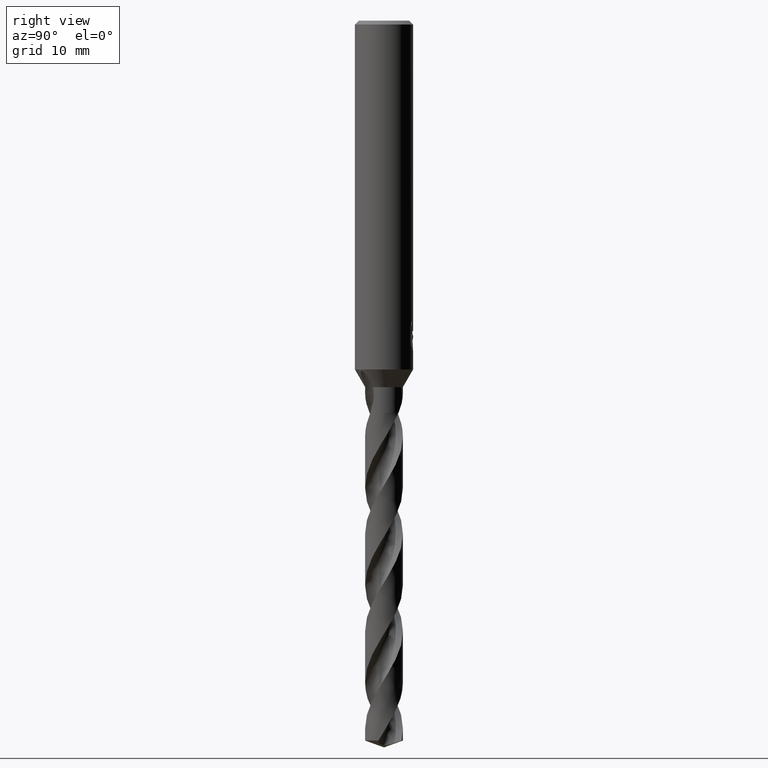
[diagram: clean part render]
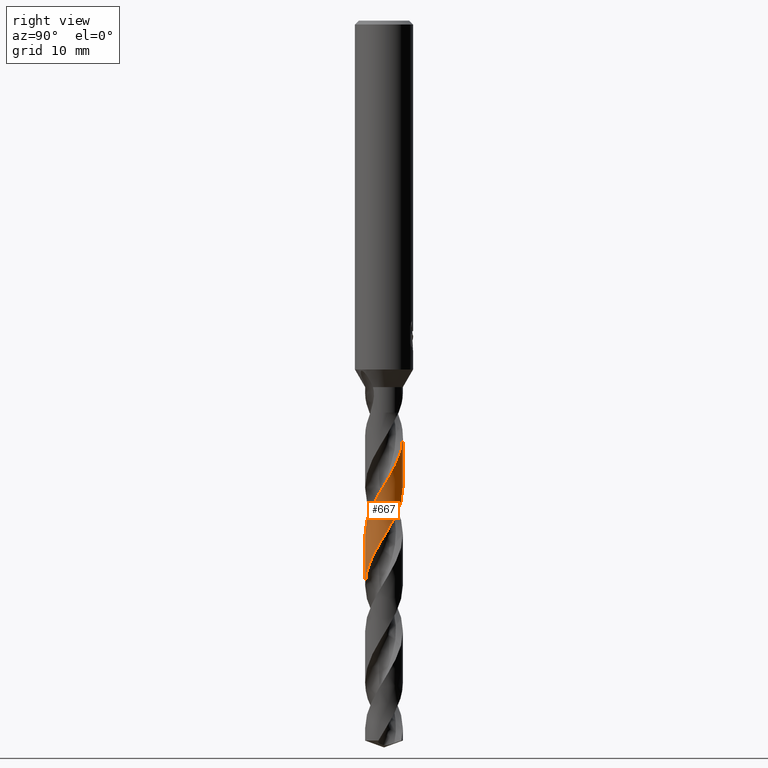
[diagram: same view with one face highlighted and labeled with its STEP entity id]
A machine part, right view. The second image highlights one B-rep face of the part: STEP entity #667.
In plain terms, the highlighted conical surface has half-angle 0 deg.
Its self-contained STEP definition (entity closure, byte-faithful):
#309=VERTEX_POINT('',#865);
#379=EDGE_CURVE('',#649,#807,#939,.T.);
#401=EDGE_CURVE('',#309,#785,#965,.T.);
#463=EDGE_CURVE('',#649,#785,#1034,.T.);
#591=EDGE_CURVE('',#309,#807,#1168,.T.);
#649=VERTEX_POINT('',#1233);
#667=ADVANCED_FACE('',(#1252),#1253,.T.);
#785=VERTEX_POINT('',#1382);
#807=VERTEX_POINT('',#1410);
#865=CARTESIAN_POINT('',(-8.96673606225903E-016,1.94990729205384,-42.9161665087043));
#939=LINE('',#2180,#2181);
#965=LINE('',#2504,#2505);
#1034=B_SPLINE_CURVE_WITH_KNOTS('',3,(#2822,#2823,#2824,#2825,#2826,#2827,#2828,#2829,#2830,#2831,#2832,#2833,#2834,#2835,#2836,#2837,#2838,#2839,#2840,#2841,#2842,#2843,#2844,#2845,#2846,#2847,#2848,#2849,#2850,#2851,#2852,#2853,#2854,#2855,#2856,#2857,#2858,#2859,#2860,#2861,#2862,#2863,#2864,#2865,#2866,#2867,#2868,#2869,#2870,#2871,#2872,#2873,#2874,#2875,#2876,#2877,#2878,#2879,#2880,#2881,#2882,#2883,#2884,#2885,#2886,#2887,#2888,#2889,#2890,#2891,#2892,#2893,#2894,#2895,#2896,#2897,#2898,#2899,#2900,#2901,#2902,#2903,#2904,#2905,#2906,#2907,#2908,#2909,#2910,#2911,#2912,#2913,#2914,#2915,#2916,#2917,#2918,#2919,#2920,#2921,#2922,#2923,#2924,#2925,#2926,#2927,#2928,#2929,#2930,#2931,#2932,#2933,#2934,#2935,#2936,#2937,#2938,#2939,#2940,#2941,#2942,#2943,#2944,#2945,#2946,#2947,#2948,#2949,#2950,#2951,#2952,#2953,#2954,#2955,#2956,#2957),.UNSPECIFIED.,.F.,.F.,(4,2,2,2,2,2,2,2,2,2,2,2,2,2,2,2,2,2,2,2,2,2,2,2,2,2,2,2,2,2,2,2,2,2,2,2,2,2,2,2,2,2,2,2,2,2,2,2,2,2,2,2,2,2,2,2,2,2,2,2,2,2,2,2,2,2,2,4),(0.0,1.02241747386653,1.65349218471775,1.77400106783432,2.72781449901232,3.35600214616949,4.04768943365469,4.33286432461689,5.28861979553649,5.88973198028568,6.51809903493381,7.1366255676585,7.82860282321543,8.12420569406693,9.06506332849365,9.69527810499796,10.3245964762636,10.9436293474671,11.5723814201442,12.1926719976909,12.8209263047681,13.4425315637971,14.0703676251653,14.693305694887,15.3208795328719,15.9449450914205,16.6364010963232,17.3636105918588,18.058859502588,18.3113421173442,19.3507899114497,19.5947610915049,20.666692126821,20.7240455422435,21.9288733543756,22.044841665082,22.9387356197562,23.561783691544,24.1885334254402,24.3453144016727,24.6224236879421,25.6004276696469,25.8844768903639,26.8451400873303,27.4404345695375,28.0702852168529,28.7217899405893,29.4162472923063,29.6970872672615,30.6693585614467,30.9602879956978,31.9114199508738,32.5295195722138,33.1611278156659,33.7826972843071,34.4135936084014,35.0358975933457,37.1978353523031,37.2884805218092,38.1192666378676,38.6881544815478,39.1310088199195,39.1989737657501,39.2292537744378,39.2618050734588,39.3132813213227,39.458934050572,39.6709048047517),.UNSPECIFIED.);
#1168=B_SPLINE_CURVE_WITH_KNOTS('',3,(#4886,#4887,#4888,#4889,#4890,#4891,#4892,#4893,#4894,#4895,#4896,#4897,#4898,#4899,#4900,#4901,#4902,#4903,#4904,#4905,#4906,#4907,#4908,#4909,#4910,#4911,#4912,#4913,#4914,#4915,#4916,#4917,#4918,#4919,#4920,#4921,#4922,#4923,#4924,#4925,#4926,#4927,#4928,#4929,#4930,#4931,#4932,#4933,#4934,#4935,#4936,#4937,#4938,#4939,#4940,#4941,#4942,#4943,#4944,#4945,#4946,#4947,#4948,#4949,#4950,#4951,#4952,#4953,#4954,#4955,#4956,#4957,#4958,#4959,#4960,#4961,#4962,#4963,#4964,#4965,#4966,#4967,#4968,#4969,#4970,#4971,#4972,#4973,#4974,#4975,#4976,#4977,#4978,#4979,#4980,#4981,#4982,#4983,#4984,#4985,#4986,#4987,#4988,#4989,#4990,#4991,#4992,#4993,#4994,#4995,#4996,#4997,#4998,#4999,#5000,#5001,#5002,#5003,#5004,#5005,#5006,#5007,#5008,#5009,#5010,#5011,#5012,#5013,#5014,#5015,#5016,#5017,#5018,#5019,#5020,#5021,#5022,#5023,#5024,#5025,#5026,#5027,#5028,#5029,#5030,#5031,#5032,#5033,#5034,#5035,#5036,#5037,#5038,#5039,#5040,#5041,#5042,#5043),.UNSPECIFIED.,.F.,.F.,(4,2,2,2,2,2,2,2,2,2,2,2,2,2,2,2,2,2,2,2,2,2,2,2,2,2,2,2,2,2,2,2,2,2,2,2,2,2,2,2,2,2,2,2,2,2,2,2,2,2,2,2,2,2,2,2,2,2,2,2,2,2,2,2,2,2,2,2,2,2,2,2,2,2,2,2,2,2,4),(0.0,0.0979046854745173,0.149922485772823,0.160049441913393,0.163963055930492,0.165513142384382,0.417084610099535,0.474068482294199,0.504859207719374,0.530490673428817,0.560615878551758,0.614556843563442,0.690720321107588,1.01953864462796,1.23973710163654,1.61599641301921,2.1549228450989,2.71773892062005,3.2655194299019,3.57460628607665,3.96752329555405,4.91173969850886,5.06048315102394,5.6483011802585,5.99085533562544,6.37698396986695,7.08939771782072,7.64726266220587,8.41815955196436,8.84609060037964,9.48146202921303,10.1589964000968,11.0075335955052,11.3460009505375,12.0960610337305,12.5605788842349,13.2721355730666,13.8252447401586,14.583544275853,15.296877716435,15.9687935534099,16.297135977571,17.0598285243917,17.7724129897426,18.4444304428384,18.7707442334175,19.5333127119461,20.2458732840776,20.9180988465482,21.242840853519,22.0086107363191,22.7206907475721,23.3929365186919,23.7166272646415,24.4859591402416,24.916357444686,25.5593030209328,26.2349197737352,27.1034878786819,27.4244887303365,28.1936750762678,28.6235166448096,29.266915790958,29.9423028870446,30.8171978015787,31.133434599144,31.9075466764163,32.3290300518285,32.9703335200064,33.6458916108368,34.5185662128089,34.8373363122632,35.6093557955102,35.9959957207336,36.5815875523473,36.8515707128142,37.3216962822104,38.0292419757406,38.7420424449292),.UNSPECIFIED.);
#1233=CARTESIAN_POINT('',(-1.57532397324927E-013,-1.94995261129944,-58.2530412703947));
#1252=FACE_OUTER_BOUND('',#5416,.T.);
#1253=CONICAL_SURFACE('',#5417,1.94995,2.95492049733504E-006);
#1382=CARTESIAN_POINT('',(-8.00210192157903E-015,1.94992293384965,-48.2096408427478));
#1410=CARTESIAN_POINT('',(-1.46763234943699E-013,-1.94993697140284,-52.9602096663236));
#2180=CARTESIAN_POINT('',(2.38544023908379E-016,-1.94995,-57.3693290215905));
#2181=VECTOR('',#7681,1.0);
#2504=CARTESIAN_POINT('',(-2.3904020801881E-016,1.94995,-57.3693290215905));
#2505=VECTOR('',#7736,1.0);
#2822=CARTESIAN_POINT('',(1.86090575201508,-0.582691841471285,-74.2902580431809));
#2823=CARTESIAN_POINT('',(1.91406108762914,-0.41293016339118,-73.9995621659353));
#2824=CARTESIAN_POINT('',(1.94367171419087,-0.236975360791225,-73.7069413993602));
#2825=CARTESIAN_POINT('',(1.95243305069733,0.050030484570142,-73.2367940984765));
#2826=CARTESIAN_POINT('',(1.94653134451806,0.159489628398433,-73.058273417861));
#2827=CARTESIAN_POINT('',(1.92866842576563,0.288368974828559,-72.844337237033));
#2828=CARTESIAN_POINT('',(1.92547454581619,0.308978420896566,-72.810012665942));
#2829=CARTESIAN_POINT('',(1.89397732990449,0.492648101163067,-72.5037669308456));
#2830=CARTESIAN_POINT('',(1.84536988373523,0.65155161874849,-72.2350429260964));
#2831=CARTESIAN_POINT('',(1.73231202421575,0.901923315543878,-71.7845184952027));
#2832=CARTESIAN_POINT('',(1.67914916519177,0.99742581339889,-71.6048897227962));
#2833=CARTESIAN_POINT('',(1.55108987165085,1.18787627685165,-71.2289725023152));
#2834=CARTESIAN_POINT('',(1.47493540580123,1.28119079682503,-71.0331773034717));
#2835=CARTESIAN_POINT('',(1.35605188946632,1.40215333845509,-70.754839393087));
#2836=CARTESIAN_POINT('',(1.3200685704202,1.43607701351741,-70.6734024301699));
#2837=CARTESIAN_POINT('',(1.15819070198091,1.57748356162127,-70.3201166341193));
#2838=CARTESIAN_POINT('',(1.02011931474667,1.67011018398793,-70.0512636061108));
#2839=CARTESIAN_POINT('',(0.778671022318458,1.79080423462852,-69.6084512501582));
#2840=CARTESIAN_POINT('',(0.681794393257356,1.82989133827738,-69.4367972103225));
#2841=CARTESIAN_POINT('',(0.4779749408765,1.89364538287466,-69.0870240410554));
#2842=CARTESIAN_POINT('',(0.371295085639721,1.91741224744566,-68.9091618304424));
#2843=CARTESIAN_POINT('',(0.15688470583536,1.94662356976915,-68.5543603145438));
#2844=CARTESIAN_POINT('',(0.0495162713879827,1.9523127029553,-68.3776580947059));
#2845=CARTESIAN_POINT('',(-0.178037134166117,1.9455538989306,-68.0047297072661));
#2846=CARTESIAN_POINT('',(-0.297534776292968,1.93088359649519,-67.8090150272948));
#2847=CARTESIAN_POINT('',(-0.464952546659077,1.89443168581574,-67.5278905779353));
#2848=CARTESIAN_POINT('',(-0.514538215635555,1.88156486290993,-67.4435466375352));
#2849=CARTESIAN_POINT('',(-0.719303370281363,1.81975521140535,-67.0919343389298));
#2850=CARTESIAN_POINT('',(-0.868688205584181,1.7533839942037,-66.8274792197827));
#2851=CARTESIAN_POINT('',(-1.10163063811025,1.6126796997532,-66.3811916208806));
#2852=CARTESIAN_POINT('',(-1.19020204428989,1.54847550640309,-66.2014593502141));
#2853=CARTESIAN_POINT('',(-1.35570117562844,1.40584263939777,-65.8436313187766));
#2854=CARTESIAN_POINT('',(-1.43222594989177,1.32778892154591,-65.6657448962906));
#2855=CARTESIAN_POINT('',(-1.57021595154837,1.16117473229992,-65.311010505393));
#2856=CARTESIAN_POINT('',(-1.63171686299616,1.07304635129333,-65.1344050296828));
#2857=CARTESIAN_POINT('',(-1.7405344366321,0.8859058661495,-64.7798015879201));
#2858=CARTESIAN_POINT('',(-1.78734130890092,0.787198954503787,-64.6020218308797));
#2859=CARTESIAN_POINT('',(-1.8634270536045,0.584456155276235,-64.2470162132804));
#2860=CARTESIAN_POINT('',(-1.89281324829213,0.480853902853395,-64.070012532036));
#2861=CARTESIAN_POINT('',(-1.93449580447871,0.268297635608216,-63.7151340828531));
#2862=CARTESIAN_POINT('',(-1.94646118000617,0.159797250687097,-63.5374863446842));
#2863=CARTESIAN_POINT('',(-1.95211610709335,-0.0568768239973123,-63.1822303464684));
#2864=CARTESIAN_POINT('',(-1.94599530640431,-0.16461599156645,-63.0048458424231));
#2865=CARTESIAN_POINT('',(-1.91583023931686,-0.379237132677661,-62.6497031028782));
#2866=CARTESIAN_POINT('',(-1.89166658630868,-0.485612057433855,-62.4721717776566));
#2867=CARTESIAN_POINT('',(-1.82609253559661,-0.692401044927731,-62.1166856990693));
#2868=CARTESIAN_POINT('',(-1.78496827116279,-0.792412056733024,-61.9389410168164));
#2869=CARTESIAN_POINT('',(-1.68614304432903,-0.985454456782292,-61.5835272327649));
#2870=CARTESIAN_POINT('',(-1.62852405964979,-1.07801144191995,-61.4060886520134));
#2871=CARTESIAN_POINT('',(-1.4987937565575,-1.25207043145213,-61.0504210033296));
#2872=CARTESIAN_POINT('',(-1.42706841069519,-1.33323895897894,-60.8723786653867));
#2873=CARTESIAN_POINT('',(-1.26238200355444,-1.49100710521558,-60.4985558500794));
#2874=CARTESIAN_POINT('',(-1.16837464226184,-1.56575931383516,-60.3033021206845));
#2875=CARTESIAN_POINT('',(-0.962656947967398,-1.70044471005482,-59.9002096991366));
#2876=CARTESIAN_POINT('',(-0.850721264943936,-1.75912910326317,-59.6928125538908));
#2877=CARTESIAN_POINT('',(-0.621986076733731,-1.85203160399732,-59.2886581924082));
#2878=CARTESIAN_POINT('',(-0.506368431433912,-1.88690062609934,-59.0923055136991));
#2879=CARTESIAN_POINT('',(-0.34563433997486,-1.91957496389463,-58.8227723132703));
#2880=CARTESIAN_POINT('',(-0.302572138861209,-1.92683263290968,-58.7508375773869));
#2881=CARTESIAN_POINT('',(-0.0807574318241567,-1.95658318352403,-58.3832159697117));
#2882=CARTESIAN_POINT('',(0.100038407738237,-1.9556745735475,-58.0915790076473));
#2883=CARTESIAN_POINT('',(0.319870200509417,-1.92399967184623,-57.7264556737591));
#2884=CARTESIAN_POINT('',(0.36144163941802,-1.9166269525134,-57.6569264336786));
#2885=CARTESIAN_POINT('',(0.584754895497667,-1.86947386278742,-57.2820979804791));
#2886=CARTESIAN_POINT('',(0.760034276240594,-1.80529374729364,-56.9812996345887));
#2887=CARTESIAN_POINT('',(0.932220719939739,-1.712705444005,-56.6595873030117));
#2888=CARTESIAN_POINT('',(0.940916342912195,-1.70794365144885,-56.6432584804242));
#2889=CARTESIAN_POINT('',(1.13162897151576,-1.60160923078821,-56.283876245246));
#2890=CARTESIAN_POINT('',(1.29613174458406,-1.47164373288951,-55.9472264051396));
#2891=CARTESIAN_POINT('',(1.45051673835466,-1.30333710140867,-55.5714622750067));
#2892=CARTESIAN_POINT('',(1.46383414633796,-1.28836215036392,-55.5384531292724));
#2893=CARTESIAN_POINT('',(1.5780475388921,-1.15586436013641,-55.2507630041261));
#2894=CARTESIAN_POINT('',(1.66491590337147,-1.02684953902672,-54.9987867022926));
#2895=CARTESIAN_POINT('',(1.78495099299373,-0.792416948291486,-54.5672465318181));
#2896=CARTESIAN_POINT('',(1.82611631488573,-0.692289087758115,-54.3892981899526));
#2897=CARTESIAN_POINT('',(1.89166182896724,-0.485505688702863,-54.0337533738591));
#2898=CARTESIAN_POINT('',(1.9157994737484,-0.379231652901484,-53.8563827380432));
#2899=CARTESIAN_POINT('',(1.93473756017816,-0.244526876233706,-53.6335376817292));
#2900=CARTESIAN_POINT('',(1.9379593252434,-0.217517146534277,-53.5889502568795));
#2901=CARTESIAN_POINT('',(1.9453058088357,-0.142663202385944,-53.4654769916247));
#2902=CARTESIAN_POINT('',(1.94822404758378,-0.0947735323611833,-53.386451399955));
#2903=CARTESIAN_POINT('',(1.95343962954181,0.122375093142085,-53.0294868165211));
#2904=CARTESIAN_POINT('',(1.93546240455679,0.29139763082513,-52.7548022000921));
#2905=CARTESIAN_POINT('',(1.88435506219342,0.503857702346517,-52.3961396410003));
#2906=CARTESIAN_POINT('',(1.87106643828683,0.551149127641803,-52.3152365015437));
#2907=CARTESIAN_POINT('',(1.80513256655351,0.755833720653243,-51.9617781982763));
#2908=CARTESIAN_POINT('',(1.73427695817532,0.906708121768053,-51.6922587813878));
#2909=CARTESIAN_POINT('',(1.58982397724008,1.13370678395271,-51.2508247151139));
#2910=CARTESIAN_POINT('',(1.52772490712275,1.21611105177761,-51.0812574898618));
#2911=CARTESIAN_POINT('',(1.38694344597537,1.37496331623787,-50.7335879407266));
#2912=CARTESIAN_POINT('',(1.30786539687831,1.45038020076473,-50.5557516078724));
#2913=CARTESIAN_POINT('',(1.13509810502105,1.58949495020158,-50.1920639398954));
#2914=CARTESIAN_POINT('',(1.04127342417393,1.65248888965536,-50.0064179442529));
#2915=CARTESIAN_POINT('',(0.837053847214854,1.76523167936402,-49.6243740326437));
#2916=CARTESIAN_POINT('',(0.726612048016931,1.81347289737858,-49.42845166509));
#2917=CARTESIAN_POINT('',(0.566417670073962,1.86647853585259,-49.1514747968671));
#2918=CARTESIAN_POINT('',(0.519807009929429,1.87998983883036,-49.0715451126106));
#2919=CARTESIAN_POINT('',(0.309878635090971,1.9324511298835,-48.7159119011851));
#2920=CARTESIAN_POINT('',(0.142402758815889,1.95196014638795,-48.4433693449113));
#2921=CARTESIAN_POINT('',(-0.0758516667354654,1.94909509549104,-48.0851710701126));
#2922=CARTESIAN_POINT('',(-0.125996105649158,1.94649327992222,-48.0024847697664));
#2923=CARTESIAN_POINT('',(-0.339186160601397,1.92717837523111,-47.6506023938388));
#2924=CARTESIAN_POINT('',(-0.499988527549851,1.89186056789514,-47.3843061255267));
#2925=CARTESIAN_POINT('',(-0.755047725004354,1.80096162575558,-46.940187679981));
#2926=CARTESIAN_POINT('',(-0.852454845001937,1.75696148021142,-46.7645629565204));
#2927=CARTESIAN_POINT('',(-1.04131438562554,1.65219773862078,-46.410819606047));
#2928=CARTESIAN_POINT('',(-1.13211124037111,1.59134954386881,-46.2329334481916));
#2929=CARTESIAN_POINT('',(-1.30114034422454,1.4562705487248,-45.8781293199195));
#2930=CARTESIAN_POINT('',(-1.3793127725729,1.38246551198899,-45.7014405193444));
#2931=CARTESIAN_POINT('',(-1.52392938389565,1.22135122188353,-45.3468116920433));
#2932=CARTESIAN_POINT('',(-1.58981864172043,1.13424800664895,-45.1690917567035));
#2933=CARTESIAN_POINT('',(-1.70551754901553,0.951276160637452,-44.8142146321661));
#2934=CARTESIAN_POINT('',(-1.7553323448742,0.855879160436415,-44.6372950420347));
#2935=CARTESIAN_POINT('',(-1.94204730867472,0.412495345166309,-43.8488265453793));
#2936=CARTESIAN_POINT('',(-1.98447075602287,0.0350305329159868,-43.2549966634432));
#2937=CARTESIAN_POINT('',(-1.91914320149364,-0.345348498099612,-42.6177232454159));
#2938=CARTESIAN_POINT('',(-1.91633817558407,-0.360589842422796,-42.5920954577132));
#2939=CARTESIAN_POINT('',(-1.88583496680962,-0.515862290927536,-42.3308956390798));
#2940=CARTESIAN_POINT('',(-1.84316384746794,-0.652243875284971,-42.1007242957743));
#2941=CARTESIAN_POINT('',(-1.74612789126588,-0.873381824345456,-41.7082637383499));
#2942=CARTESIAN_POINT('',(-1.70041915490712,-0.959046058710796,-41.550530434621));
#2943=CARTESIAN_POINT('',(-1.61010402409136,-1.10235293760498,-41.2656174042314));
#2944=CARTESIAN_POINT('',(-1.56808734307741,-1.16112193238895,-41.1409267848906));
#2945=CARTESIAN_POINT('',(-1.51729132617782,-1.22476966182759,-40.994477607623));
#2946=CARTESIAN_POINT('',(-1.51078209895782,-1.2328322992653,-40.9756022686115));
#2947=CARTESIAN_POINT('',(-1.49703970762999,-1.24941259180009,-40.9384275953647));
#2948=CARTESIAN_POINT('',(-1.49272597576314,-1.25456405322376,-40.9270201586638));
#2949=CARTESIAN_POINT('',(-1.48360631149848,-1.26533831286461,-40.9034479168605));
#2950=CARTESIAN_POINT('',(-1.47878957202414,-1.27096530612131,-40.8912952470403));
#2951=CARTESIAN_POINT('',(-1.46610893034937,-1.28560496948515,-40.8600699607116));
#2952=CARTESIAN_POINT('',(-1.45810750312872,-1.29467724336279,-40.8410965104418));
#2953=CARTESIAN_POINT('',(-1.42652452107594,-1.32979674726626,-40.7689875476987));
#2954=CARTESIAN_POINT('',(-1.40133317200723,-1.35641341867864,-40.7171126205301));
#2955=CARTESIAN_POINT('',(-1.334336789607,-1.42295089944018,-40.5924874214124));
#2956=CARTESIAN_POINT('',(-1.29065836559316,-1.46294567479517,-40.5218629318592));
#2957=CARTESIAN_POINT('',(-1.24254090396988,-1.50273156936949,-40.4534));
#4886=CARTESIAN_POINT('',(-1.35533010780669,1.40185247672167,-40.4534));
#4887=CARTESIAN_POINT('',(-1.34371833144948,1.41307901714275,-40.4817578529157));
#4888=CARTESIAN_POINT('',(-1.33192350624318,1.42420391939092,-40.5101608161048));
#4889=CARTESIAN_POINT('',(-1.31352979776893,1.44111965824155,-40.5536125633229));
#4890=CARTESIAN_POINT('',(-1.30709476101877,1.44695918525476,-40.5686629060358));
#4891=CARTESIAN_POINT('',(-1.29932473861897,1.45391530522589,-40.5866376888863));
#4892=CARTESIAN_POINT('',(-1.29805622528456,1.45504796114313,-40.5895660021808));
#4893=CARTESIAN_POINT('',(-1.29629407820105,1.45661723830267,-40.5936251377993));
#4894=CARTESIAN_POINT('',(-1.29580254735802,1.45705452467898,-40.5947564508292));
#4895=CARTESIAN_POINT('',(-1.29511582446091,1.45766483936523,-40.5963357064767));
#4896=CARTESIAN_POINT('',(-1.29492094031744,1.45783796980724,-40.5967837337538));
#4897=CARTESIAN_POINT('',(-1.26308800487154,1.48610617106633,-40.6699416654031));
#4898=CARTESIAN_POINT('',(-1.23083453989387,1.51297054212101,-40.7401017510618));
#4899=CARTESIAN_POINT('',(-1.18839165508189,1.54594248718296,-40.8277218155326));
#4900=CARTESIAN_POINT('',(-1.18048655285233,1.55198772692722,-40.8438610422609));
#4901=CARTESIAN_POINT('',(-1.16818899467656,1.56124260641826,-40.8687183037135));
#4902=CARTESIAN_POINT('',(-1.16385599582986,1.56447547025723,-40.87742984846));
#4903=CARTESIAN_POINT('',(-1.15587834377639,1.570375977675,-40.8933895514964));
#4904=CARTESIAN_POINT('',(-1.15224163052205,1.57304635908067,-40.9006350806591));
#4905=CARTESIAN_POINT('',(-1.1443017078387,1.5788341226044,-40.9163937481538));
#4906=CARTESIAN_POINT('',(-1.13999548582704,1.581946294543,-40.9249023319972));
#4907=CARTESIAN_POINT('',(-1.12793123538981,1.59059032722448,-40.9486442277438));
#4908=CARTESIAN_POINT('',(-1.12014421727828,1.59608390966337,-40.9638591479842));
#4909=CARTESIAN_POINT('',(-1.10125002859876,1.60920666832173,-41.0005712717915));
#4910=CARTESIAN_POINT('',(-1.0901944089479,1.61671929299084,-41.0219290577856));
#4911=CARTESIAN_POINT('',(-1.02938042073957,1.65710813887938,-41.1391211984429));
#4912=CARTESIAN_POINT('',(-0.978852165036145,1.6874199491104,-41.23500487603));
#4913=CARTESIAN_POINT('',(-0.89297849267239,1.7338521836679,-41.3948199082099));
#4914=CARTESIAN_POINT('',(-0.858028246526699,1.75140918695738,-41.4590410551531));
#4915=CARTESIAN_POINT('',(-0.762124893318673,1.79603502167123,-41.6328714893108));
#4916=CARTESIAN_POINT('',(-0.700217023230326,1.82106468402434,-41.7426124414023));
#4917=CARTESIAN_POINT('',(-0.546771536694587,1.87411570993389,-42.0092834091239));
#4918=CARTESIAN_POINT('',(-0.45417668467576,1.89869263406342,-42.1655665960144));
#4919=CARTESIAN_POINT('',(-0.261668419815586,1.93485799247196,-42.4861519954));
#4920=CARTESIAN_POINT('',(-0.162175454077834,1.94571293577654,-42.6497531067724));
#4921=CARTESIAN_POINT('',(0.0346998614109001,1.95201794892694,-42.9732053732291));
#4922=CARTESIAN_POINT('',(0.131950706545857,1.94786743007312,-43.1326295763127));
#4923=CARTESIAN_POINT('',(0.283026086640646,1.93003916227235,-43.3821090835511));
#4924=CARTESIAN_POINT('',(0.337248234450109,1.92130805839372,-43.4720332882994));
#4925=CARTESIAN_POINT('',(0.459448864397172,1.8962932465192,-43.6763584918853));
#4926=CARTESIAN_POINT('',(0.527019691782879,1.87863439008055,-43.7905672622694));
#4927=CARTESIAN_POINT('',(0.753201782739965,1.80636497677775,-44.179886960956));
#4928=CARTESIAN_POINT('',(0.905703620064046,1.73493194366652,-44.4537067306342));
#4929=CARTESIAN_POINT('',(1.06947770215584,1.63066716268441,-44.7719014972566));
#4930=CARTESIAN_POINT('',(1.09146910479355,1.61603002657175,-44.8151962621765));
#4931=CARTESIAN_POINT('',(1.19884701167186,1.54137022199064,-45.0296839887259));
#4932=CARTESIAN_POINT('',(1.27962810121245,1.47499608987271,-45.2007704021075));
#4933=CARTESIAN_POINT('',(1.39846288654569,1.36020955615407,-45.4717032469138));
#4934=CARTESIAN_POINT('',(1.44022687161584,1.31591044098749,-45.5713795925468));
#4935=CARTESIAN_POINT('',(1.52453677167885,1.21764783861246,-45.7835335399517));
#4936=CARTESIAN_POINT('',(1.56641685019652,1.16327661403544,-45.8958035487706));
#4937=CARTESIAN_POINT('',(1.67714731358821,1.00267516442649,-46.2157440829266));
#4938=CARTESIAN_POINT('',(1.73867269784902,0.891749775543707,-46.422912481291));
#4939=CARTESIAN_POINT('',(1.82844770403544,0.684679733410137,-46.7928210588555));
#4940=CARTESIAN_POINT('',(1.86087026480006,0.590897795927925,-46.9548737393278));
#4941=CARTESIAN_POINT('',(1.92077968177172,0.362676315699407,-47.3419182518799));
#4942=CARTESIAN_POINT('',(1.94151131067166,0.226922925848298,-47.5659764713196));
#4943=CARTESIAN_POINT('',(1.95135347962626,0.0141053965711385,-47.9150916824304));
#4944=CARTESIAN_POINT('',(1.95041872381534,-0.0619746232958442,-48.0395099121715));
#4945=CARTESIAN_POINT('',(1.93707480821189,-0.250352976163353,-48.3492526554922));
#4946=CARTESIAN_POINT('',(1.91934229763106,-0.362041338962519,-48.5341424572796));
#4947=CARTESIAN_POINT('',(1.86292385449799,-0.58840089715146,-48.9165571164976));
#4948=CARTESIAN_POINT('',(1.82306214737262,-0.702234467244419,-49.1132348091021));
#4949=CARTESIAN_POINT('',(1.71025014536982,-0.948667181096304,-49.5578427558378));
#4950=CARTESIAN_POINT('',(1.6318207981987,-1.07802033849306,-49.8042865981882));
#4951=CARTESIAN_POINT('',(1.50229204955135,-1.24457220564486,-50.1500072008583));
#4952=CARTESIAN_POINT('',(1.46319478622731,-1.29030942823478,-50.2485070665649));
#4953=CARTESIAN_POINT('',(1.33090406621651,-1.43131796262615,-50.5656542792186));
#4954=CARTESIAN_POINT('',(1.2299936420682,-1.51892070529126,-50.7837624503273));
#4955=CARTESIAN_POINT('',(1.05333647539833,-1.64302557823137,-51.1375625907079));
#4956=CARTESIAN_POINT('',(0.98285051616677,-1.68613450807568,-51.2726222468306));
#4957=CARTESIAN_POINT('',(0.798058541565422,-1.78362569562952,-51.615305355724));
#4958=CARTESIAN_POINT('',(0.68074587514162,-1.83161798343611,-51.8223173885073));
#4959=CARTESIAN_POINT('',(0.465398240643747,-1.89613197527695,-52.1907583944074));
#4960=CARTESIAN_POINT('',(0.369247077031963,-1.91717494366163,-52.351501291745));
#4961=CARTESIAN_POINT('',(0.138540350124085,-1.94966851555848,-52.7336653400096));
#4962=CARTESIAN_POINT('',(0.00349640823168371,-1.95458885413878,-52.9541945458465));
#4963=CARTESIAN_POINT('',(-0.257552446902013,-1.9370105362545,-53.382958150368));
#4964=CARTESIAN_POINT('',(-0.382910041687601,-1.91616831444532,-53.5902988123459));
#4965=CARTESIAN_POINT('',(-0.620599039254575,-1.85239623767092,-53.9940156799232));
#4966=CARTESIAN_POINT('',(-0.732854812333506,-1.81092942324037,-54.1893561605982));
#4967=CARTESIAN_POINT('',(-0.893330010686182,-1.73425533501753,-54.480772086455));
#4968=CARTESIAN_POINT('',(-0.944828637637623,-1.70674399748219,-54.5763650093247));
#4969=CARTESIAN_POINT('',(-1.11154381702977,-1.60782787913061,-54.8943361560927));
#4970=CARTESIAN_POINT('',(-1.22060825520837,-1.52669100127758,-55.1161509980009));
#4971=CARTESIAN_POINT('',(-1.41363399021329,-1.3490651131821,-55.5460109127711));
#4972=CARTESIAN_POINT('',(-1.49825021334837,-1.25441688100972,-55.7531595754721));
#4973=CARTESIAN_POINT('',(-1.6436223448294,-1.05596048873537,-56.1567220081659));
#4974=CARTESIAN_POINT('',(-1.70521243331741,-0.953322571453199,-56.3521059451142));
#4975=CARTESIAN_POINT('',(-1.78220156723364,-0.793360691412319,-56.6429855305611));
#4976=CARTESIAN_POINT('',(-1.80500944062657,-0.740000443520915,-56.737998275005));
#4977=CARTESIAN_POINT('',(-1.87305112722425,-0.558875134676688,-57.0553705125455));
#4978=CARTESIAN_POINT('',(-1.90736959102628,-0.427355772230578,-57.2771697810255));
#4979=CARTESIAN_POINT('',(-1.94682564748343,-0.168029656945987,-57.707025243071));
#4980=CARTESIAN_POINT('',(-1.9536224793932,-0.0412476998908752,-57.9141877423769));
#4981=CARTESIAN_POINT('',(-1.94286690860775,0.204576338958492,-58.3178380206029));
#4982=CARTESIAN_POINT('',(-1.92669009674054,0.323225936218223,-58.5132966671707));
#4983=CARTESIAN_POINT('',(-1.88671189858704,0.495958645627495,-58.8038032690421));
#4984=CARTESIAN_POINT('',(-1.87120226075277,0.551593195374321,-58.8983679650938));
#4985=CARTESIAN_POINT('',(-1.81093342302678,0.735775084135379,-59.2162406632684));
#4986=CARTESIAN_POINT('',(-1.7551713377174,0.86037706053513,-59.4389800160673));
#4987=CARTESIAN_POINT('',(-1.62332942108548,1.08773718903688,-59.8696611861604));
#4988=CARTESIAN_POINT('',(-1.54930582624658,1.19079786854845,-60.0767071143137));
#4989=CARTESIAN_POINT('',(-1.38708081551014,1.37572462434255,-60.4802568893625));
#4990=CARTESIAN_POINT('',(-1.30018407610986,1.45813549615002,-60.6757364501879));
#4991=CARTESIAN_POINT('',(-1.16101303372434,1.56770832103871,-60.9659671379499));
#4992=CARTESIAN_POINT('',(-1.11424498295683,1.60128539816225,-61.0602356211367));
#4993=CARTESIAN_POINT('',(-0.951595082701754,1.70748700827944,-61.3788674178303));
#4994=CARTESIAN_POINT('',(-0.829520448540175,1.7700202824242,-61.6026539272151));
#4995=CARTESIAN_POINT('',(-0.630444752849132,1.8468234514414,-61.9523127250599));
#4996=CARTESIAN_POINT('',(-0.557492197086299,1.87013757918108,-62.0775483775898));
#4997=CARTESIAN_POINT('',(-0.372658757522088,1.91743299131613,-62.3904662178774));
#4998=CARTESIAN_POINT('',(-0.259635164359465,1.93598243134746,-62.5776971575163));
#4999=CARTESIAN_POINT('',(-0.0258021904195422,1.9534941692214,-62.9620613157369));
#5000=CARTESIAN_POINT('',(0.0945480233343954,1.95137208328752,-63.1583490904225));
#5001=CARTESIAN_POINT('',(0.367359183363587,1.92126463639018,-63.6085930095066));
#5002=CARTESIAN_POINT('',(0.518326368620088,1.88615811770532,-63.8609852258948));
#5003=CARTESIAN_POINT('',(0.717314609557179,1.81414015948123,-64.2077251803624));
#5004=CARTESIAN_POINT('',(0.770108670540372,1.79236535995723,-64.3012349292232));
#5005=CARTESIAN_POINT('',(0.945850015091267,1.71068760267303,-64.6191155420283));
#5006=CARTESIAN_POINT('',(1.063491046156,1.64015303964029,-64.8429122829986));
#5007=CARTESIAN_POINT('',(1.23390201700424,1.51186251006504,-65.1924493099069));
#5008=CARTESIAN_POINT('',(1.29221317325609,1.46233449969826,-65.3175530868305));
#5009=CARTESIAN_POINT('',(1.43014327222187,1.33047960840918,-65.6305157027089));
#5010=CARTESIAN_POINT('',(1.50573730061093,1.24428919037077,-65.8179229942558));
#5011=CARTESIAN_POINT('',(1.64431827459784,1.05501517541518,-66.2024441583067));
#5012=CARTESIAN_POINT('',(1.70615907813076,0.951760516864455,-66.3987141672057));
#5013=CARTESIAN_POINT('',(1.82538444415579,0.703263680922464,-66.8508422827734));
#5014=CARTESIAN_POINT('',(1.87567828974884,0.55541323884197,-67.1051106402009));
#5015=CARTESIAN_POINT('',(1.91949321601202,0.348042261294907,-67.452386758104));
#5016=CARTESIAN_POINT('',(1.92873238922448,0.292532445442227,-67.5445354120475));
#5017=CARTESIAN_POINT('',(1.95226818344139,0.100098217412262,-67.8625363058089));
#5018=CARTESIAN_POINT('',(1.95447202982819,-0.0379664243052822,-68.0878044197074));
#5019=CARTESIAN_POINT('',(1.93536350325143,-0.24985089204653,-68.4364190400069));
#5020=CARTESIAN_POINT('',(1.924326284571,-0.324068610264254,-68.5591249378688));
#5021=CARTESIAN_POINT('',(1.88580472747905,-0.509101712729833,-68.869110497205));
#5022=CARTESIAN_POINT('',(1.8528033199147,-0.618529136204946,-69.0559532743051));
#5023=CARTESIAN_POINT('',(1.76575898310941,-0.836053817964447,-69.4400025284311));
#5024=CARTESIAN_POINT('',(1.71089655185363,-0.943245043763205,-69.6363644354107));
#5025=CARTESIAN_POINT('',(1.5633991616944,-1.17571983378337,-70.0879988350232));
#5026=CARTESIAN_POINT('',(1.46487692656381,-1.29642351488881,-70.341690124347));
#5027=CARTESIAN_POINT('',(1.31217735140367,-1.44356084763339,-70.6891388834381));
#5028=CARTESIAN_POINT('',(1.26964117300745,-1.48110934406931,-70.7820456269406));
#5029=CARTESIAN_POINT('',(1.11874952082759,-1.60303289433622,-71.1002475422947));
#5030=CARTESIAN_POINT('',(1.00309255776701,-1.67784164620677,-71.3249571871235));
#5031=CARTESIAN_POINT('',(0.819086382042436,-1.77096104020529,-71.6628757556604));
#5032=CARTESIAN_POINT('',(0.756103513432941,-1.79875213391576,-71.7754694107165));
#5033=CARTESIAN_POINT('',(0.594400832549518,-1.86011124486039,-72.0590989253647));
#5034=CARTESIAN_POINT('',(0.494189562685389,-1.88920822481745,-72.2298292349873));
#5035=CARTESIAN_POINT('',(0.345078583392054,-1.9198195763394,-72.4794317416773));
#5036=CARTESIAN_POINT('',(0.297675305599881,-1.92773924907575,-72.5581572674827));
#5037=CARTESIAN_POINT('',(0.167032249905028,-1.94462966570328,-72.7740411089916));
#5038=CARTESIAN_POINT('',(0.083464278539958,-1.95000324258935,-72.9109666588922));
#5039=CARTESIAN_POINT('',(-0.126042797989064,-1.94998590671562,-73.2545613973868));
#5040=CARTESIAN_POINT('',(-0.251670557513451,-1.93778779244794,-73.4605536775841));
#5041=CARTESIAN_POINT('',(-0.49982461515282,-1.88912051356183,-73.8748354558756));
#5042=CARTESIAN_POINT('',(-0.621565368503627,-1.85262030268779,-74.0822002571301));
#5043=CARTESIAN_POINT('',(-0.738801707064499,-1.80462517926538,-74.290258043181));
#5416=EDGE_LOOP('',(#8023,#8024,#8025,#8026));
#5417=AXIS2_PLACEMENT_3D('',#8027,#8028,#8029);
#7681=DIRECTION('',(-3.6186144160712E-022,2.95492049733074E-006,0.999999999995634));
#7736=DIRECTION('',(-3.6186144160712E-022,2.95492049733074E-006,-0.999999999995634));
#8023=ORIENTED_EDGE('',*,*,#401,.F.);
#8024=ORIENTED_EDGE('',*,*,#591,.T.);
#8025=ORIENTED_EDGE('',*,*,#379,.F.);
#8026=ORIENTED_EDGE('',*,*,#463,.T.);
#8027=CARTESIAN_POINT('',(0.0,0.0,-57.3693290215905));
#8028=DIRECTION('',(0.0,-0.0,-1.0));
#8029=DIRECTION('',(0.0,1.0,0.0));